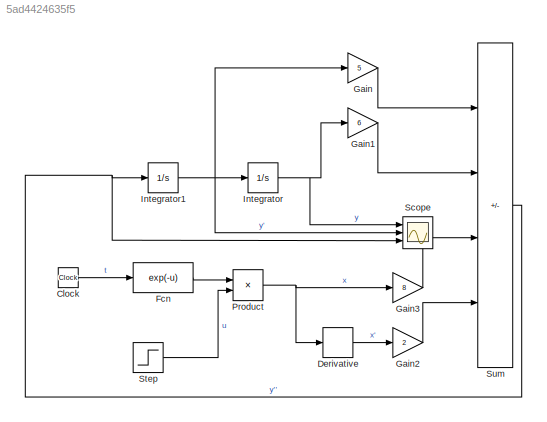
MODEL slx_5ad4424635f5
KIND model
CONFIG AbsTol = auto
CONFIG EnableMultiTasking = on
CONFIG FixedStep = auto
CONFIG MaxStep = auto
CONFIG MinStep = auto
CONFIG RelTol = 1e-3
CONFIG SampleTimeConstraint = Unconstrained
CONFIG Solver = ode45
CONFIG SolverName = ode45
CONFIG StartTime = 0.0
CONFIG StopTime = 10.0
BLOCK [Clock] Clock
BLOCK [Derivative] Derivative
BLOCK [Fcn] Fcn
  Expr = exp(-u)
BLOCK [Gain] Gain
  Gain = 5
BLOCK [Gain] Gain1
  Gain = 6
BLOCK [Gain] Gain2
  Gain = 2
BLOCK [Gain] Gain3
  Gain = 8
BLOCK [Integrator] Integrator
  AttributesFormatString = InitVal = %<InitialCondition>
  InitialCondition = 5
  Ports = [1, 1]
BLOCK [Integrator] Integrator1
  AttributesFormatString = InitVal = %<InitialCondition>
  InitialCondition = -4
  Ports = [1, 1]
BLOCK [Product] Product
  Ports = [2, 1]
BLOCK [Scope] Scope
  Floating = off
  NumInputPorts = 3
  Ports = [3]
  ScopeSpecificationString = Simulink.scopes.TimeScopeBlockCfg('CurrentConfiguration', extmgr.ConfigurationSet(extmgr.Configuration('Core','General UI',true,'FigureColor',[0.501960784313725 0.501960784313725 0.501960784313725]),extmgr.Configuration('Core','Source UI',true),extmgr.Configuration('Sources','WiredSimulink',true,'DataLoggingSaveFormat','StructureWithTime','DataLoggingLimitDataPoints',true,'DataLoggingDecimation','...<+4372ch>
BLOCK [Step] Step
  SampleTime = 0
  Time = 4
BLOCK [Sum] Sum
  IconShape = rectangular
  Inputs = --||++
  Ports = [4, 1]
LINE Clock:1 -> Fcn:1
LINE Derivative:1 -> Gain2:1
LINE Fcn:1 -> Product:1
LINE Gain1:1 -> Sum:2
LINE Gain2:1 -> Sum:4
LINE Gain3:1 -> Sum:3
LINE Gain:1 -> Sum:1
NET Integrator1:1 -> Gain:1, Integrator:1, Scope:2
NET Integrator:1 -> Gain1:1, Scope:1
NET Product:1 -> Derivative:1, Gain3:1
LINE Step:1 -> Product:2
NET Sum:1 -> Integrator1:1, Scope:3
note: NET lines group one-source signal fan-out (src -> all destinations, sorted); 1:1 wires keep LINE
